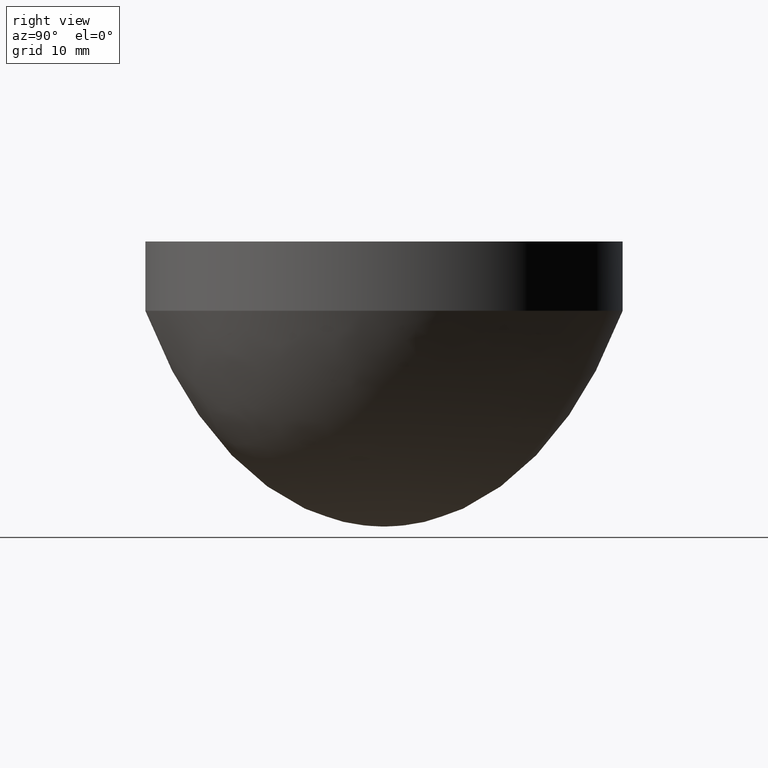
[diagram: clean part render]
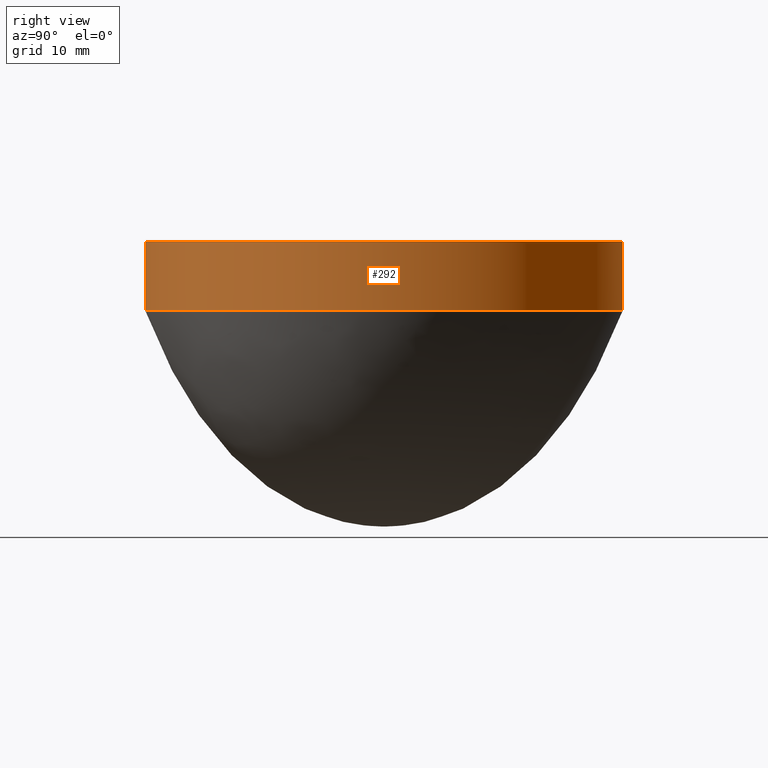
[diagram: same view with one face highlighted and labeled with its STEP entity id]
A machine part, right view. The second image highlights one B-rep face of the part: STEP entity #292.
In plain terms, the highlighted cylindrical surface (partial cylindrical patch) has radius 25 mm, axis along (0, 0, -1).
Its self-contained STEP definition (entity closure, byte-faithful):
#51 = LINE ( 'NONE', #130, #173 ) ;
#66 = DIRECTION ( 'NONE',  ( 0.000000000000000000, 1.000000000000000000, 0.000000000000000000 ) ) ;
#72 = DIRECTION ( 'NONE',  ( 0.000000000000000000, 0.000000000000000000, -1.000000000000000000 ) ) ;
#75 = ORIENTED_EDGE ( 'NONE', *, *, #659, .T. ) ;
#130 = CARTESIAN_POINT ( 'NONE',  ( 3.061616997868383043E-15, -25.00000000000000000, 31.34250000000000114 ) ) ;
#173 = VECTOR ( 'NONE', #1064, 1000.000000000000000 ) ;
#229 = EDGE_CURVE ( 'NONE', #762, #415, #457, .T. ) ;
#241 = CARTESIAN_POINT ( 'NONE',  ( 0.000000000000000000, 25.00000000000000000, 22.59373731387159978 ) ) ;
#259 = DIRECTION ( 'NONE',  ( 0.000000000000000000, 0.000000000000000000, -1.000000000000000000 ) ) ;
#291 = AXIS2_PLACEMENT_3D ( 'NONE', #924, #259, #577 ) ;
#292 = ADVANCED_FACE ( 'NONE', ( #673 ), #413, .T. ) ;
#311 = CARTESIAN_POINT ( 'NONE',  ( 0.000000000000000000, 25.00000000000000000, 29.85000000000000142 ) ) ;
#312 = CIRCLE ( 'NONE', #291, 25.00000000000000000 ) ;
#323 = DIRECTION ( 'NONE',  ( 0.000000000000000000, 0.000000000000000000, -1.000000000000000000 ) ) ;
#347 = ORIENTED_EDGE ( 'NONE', *, *, #229, .F. ) ;
#394 = CIRCLE ( 'NONE', #896, 25.00000000000000000 ) ;
#403 = EDGE_CURVE ( 'NONE', #762, #693, #312, .T. ) ;
#407 = CARTESIAN_POINT ( 'NONE',  ( 0.000000000000000000, 0.000000000000000000, 31.34250000000000114 ) ) ;
#413 = CYLINDRICAL_SURFACE ( 'NONE', #586, 25.00000000000000000 ) ;
#415 = VERTEX_POINT ( 'NONE', #241 ) ;
#457 = LINE ( 'NONE', #626, #783 ) ;
#577 = DIRECTION ( 'NONE',  ( 0.000000000000000000, 1.000000000000000000, 0.000000000000000000 ) ) ;
#586 = AXIS2_PLACEMENT_3D ( 'NONE', #407, #323, #1076 ) ;
#626 = CARTESIAN_POINT ( 'NONE',  ( 0.000000000000000000, 25.00000000000000000, 31.34250000000000114 ) ) ;
#659 = EDGE_CURVE ( 'NONE', #839, #415, #394, .T. ) ;
#673 = FACE_OUTER_BOUND ( 'NONE', #774, .T. ) ;
#682 = EDGE_CURVE ( 'NONE', #693, #839, #51, .T. ) ;
#685 = ORIENTED_EDGE ( 'NONE', *, *, #682, .T. ) ;
#689 = ORIENTED_EDGE ( 'NONE', *, *, #403, .T. ) ;
#693 = VERTEX_POINT ( 'NONE', #1058 ) ;
#744 = CARTESIAN_POINT ( 'NONE',  ( 0.000000000000000000, 0.000000000000000000, 22.59373731387159978 ) ) ;
#762 = VERTEX_POINT ( 'NONE', #311 ) ;
#774 = EDGE_LOOP ( 'NONE', ( #689, #685, #75, #347 ) ) ;
#783 = VECTOR ( 'NONE', #72, 1000.000000000000000 ) ;
#839 = VERTEX_POINT ( 'NONE', #981 ) ;
#896 = AXIS2_PLACEMENT_3D ( 'NONE', #744, #1073, #66 ) ;
#924 = CARTESIAN_POINT ( 'NONE',  ( 0.000000000000000000, 0.000000000000000000, 29.85000000000000142 ) ) ;
#981 = CARTESIAN_POINT ( 'NONE',  ( 3.061616997868383043E-15, -25.00000000000000000, 22.59373731387159978 ) ) ;
#1058 = CARTESIAN_POINT ( 'NONE',  ( 3.061616997868383043E-15, -25.00000000000000000, 29.85000000000000142 ) ) ;
#1064 = DIRECTION ( 'NONE',  ( 0.000000000000000000, 0.000000000000000000, -1.000000000000000000 ) ) ;
#1073 = DIRECTION ( 'NONE',  ( 0.000000000000000000, 0.000000000000000000, 1.000000000000000000 ) ) ;
#1076 = DIRECTION ( 'NONE',  ( 0.000000000000000000, 1.000000000000000000, 0.000000000000000000 ) ) ;